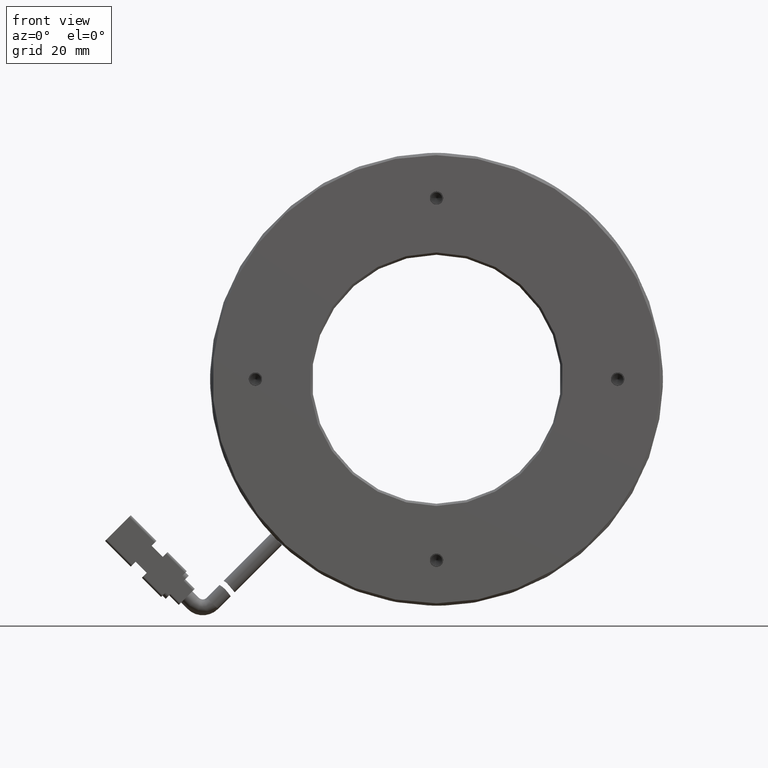
[diagram: clean part render]
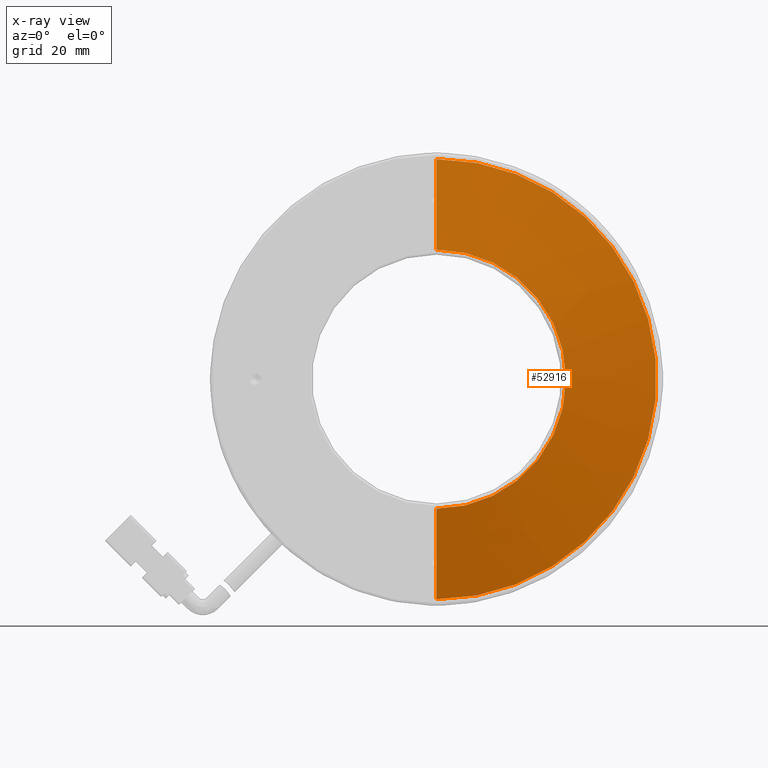
[diagram: x-ray — body ghosted, one internal face saturated and labeled with its STEP entity id]
A machine part, front view, then the same camera in x-ray: the body is ghosted and one INTERNAL B-rep face — a face not visible from any outside direction — is saturated and labeled: STEP entity #52916.
In plain terms, the highlighted conical surface has half-angle 75 deg.
Its self-contained STEP definition (entity closure, byte-faithful):
#6922 = VERTEX_POINT ( 'NONE', #121987 ) ;
#9523 = DIRECTION ( 'NONE',  ( 0.0000000000000000000, 0.0000000000000000000, 1.000000000000000000 ) ) ;
#9739 = LINE ( 'NONE', #45105, #152780 ) ;
#11891 = VERTEX_POINT ( 'NONE', #163403 ) ;
#23493 = CARTESIAN_POINT ( 'NONE',  ( 2.894644667477719800, 12.06489787849728400, 48.60352761804102800 ) ) ;
#24053 = EDGE_CURVE ( 'NONE', #11891, #93928, #145746, .T. ) ;
#25572 = ORIENTED_EDGE ( 'NONE', *, *, #35780, .T. ) ;
#29673 = DIRECTION ( 'NONE',  ( -0.0000000000000000000, 1.000000000000000000, -0.0000000000000000000 ) ) ;
#32499 = CIRCLE ( 'NONE', #129399, 48.60352761804102800 ) ;
#35780 = EDGE_CURVE ( 'NONE', #93928, #156188, #82031, .T. ) ;
#38046 = CARTESIAN_POINT ( 'NONE',  ( 2.894644667477713500, 12.06489787849728400, 48.60352761804102800 ) ) ;
#45105 = CARTESIAN_POINT ( 'NONE',  ( 2.894644667477719800, 12.06489787849728400, -48.60352761804102800 ) ) ;
#45687 = DIRECTION ( 'NONE',  ( 1.182917971378668600E-016, 0.2588190451025241300, -0.9659258262890673100 ) ) ;
#46363 = ORIENTED_EDGE ( 'NONE', *, *, #134909, .T. ) ;
#47875 = EDGE_LOOP ( 'NONE', ( #25572, #46363, #174525, #151046, #72859 ) ) ;
#52916 = ADVANCED_FACE ( 'NONE', ( #73700 ), #128444, .T. ) ;
#57514 = AXIS2_PLACEMENT_3D ( 'NONE', #110195, #29673, #123759 ) ;
#65728 = VECTOR ( 'NONE', #145659, 1000.000000000000100 ) ;
#72859 = ORIENTED_EDGE ( 'NONE', *, *, #24053, .T. ) ;
#73700 = FACE_OUTER_BOUND ( 'NONE', #47875, .T. ) ;
#77923 = CARTESIAN_POINT ( 'NONE',  ( 2.894644667477713500, 12.06489787849728400, 0.0000000000000000000 ) ) ;
#82031 = CIRCLE ( 'NONE', #57514, 28.60352761804102400 ) ;
#84661 = CARTESIAN_POINT ( 'NONE',  ( 2.894644667477713500, 12.06489787849728400, 0.0000000000000000000 ) ) ;
#90033 = DIRECTION ( 'NONE',  ( -0.0000000000000000000, 1.000000000000000000, -0.0000000000000000000 ) ) ;
#90850 = EDGE_CURVE ( 'NONE', #6922, #148760, #32499, .T. ) ;
#91462 = DIRECTION ( 'NONE',  ( 0.0000000000000000000, 0.0000000000000000000, 1.000000000000000000 ) ) ;
#93928 = VERTEX_POINT ( 'NONE', #136678 ) ;
#97469 = AXIS2_PLACEMENT_3D ( 'NONE', #170648, #90033, #9523 ) ;
#109850 = EDGE_CURVE ( 'NONE', #11891, #148760, #133097, .T. ) ;
#110195 = CARTESIAN_POINT ( 'NONE',  ( 2.894644667477713500, 6.705914029874752400, 0.0000000000000000000 ) ) ;
#115803 = AXIS2_PLACEMENT_3D ( 'NONE', #84661, #151734, #138818 ) ;
#121987 = CARTESIAN_POINT ( 'NONE',  ( 2.894644667477713500, 12.06489787849728400, -48.60352761804102800 ) ) ;
#123759 = DIRECTION ( 'NONE',  ( 0.0000000000000000000, 0.0000000000000000000, 1.000000000000000000 ) ) ;
#128444 = CONICAL_SURFACE ( 'NONE', #115803, 48.60352761804102800, 1.308996938995743700 ) ;
#129399 = AXIS2_PLACEMENT_3D ( 'NONE', #77923, #172079, #91462 ) ;
#133097 = LINE ( 'NONE', #38046, #65728 ) ;
#134909 = EDGE_CURVE ( 'NONE', #156188, #6922, #9739, .T. ) ;
#136678 = CARTESIAN_POINT ( 'NONE',  ( 31.49817228551873800, 6.705914029874752400, 0.0000000000000000000 ) ) ;
#138818 = DIRECTION ( 'NONE',  ( 0.0000000000000000000, 0.0000000000000000000, 1.000000000000000000 ) ) ;
#139219 = CARTESIAN_POINT ( 'NONE',  ( 2.894644667477718400, 6.705914029874752400, -28.60352761804102400 ) ) ;
#145659 = DIRECTION ( 'NONE',  ( 0.0000000000000000000, 0.2588190451025241300, 0.9659258262890673100 ) ) ;
#145746 = CIRCLE ( 'NONE', #97469, 28.60352761804102400 ) ;
#148760 = VERTEX_POINT ( 'NONE', #23493 ) ;
#151046 = ORIENTED_EDGE ( 'NONE', *, *, #109850, .F. ) ;
#151734 = DIRECTION ( 'NONE',  ( -0.0000000000000000000, 1.000000000000000000, 0.0000000000000000000 ) ) ;
#152780 = VECTOR ( 'NONE', #45687, 1000.000000000000100 ) ;
#156188 = VERTEX_POINT ( 'NONE', #139219 ) ;
#163403 = CARTESIAN_POINT ( 'NONE',  ( 2.894644667477713500, 6.705914029874752400, 28.60352761804102400 ) ) ;
#170648 = CARTESIAN_POINT ( 'NONE',  ( 2.894644667477713500, 6.705914029874752400, 0.0000000000000000000 ) ) ;
#172079 = DIRECTION ( 'NONE',  ( 0.0000000000000000000, -1.000000000000000000, 0.0000000000000000000 ) ) ;
#174525 = ORIENTED_EDGE ( 'NONE', *, *, #90850, .T. ) ;